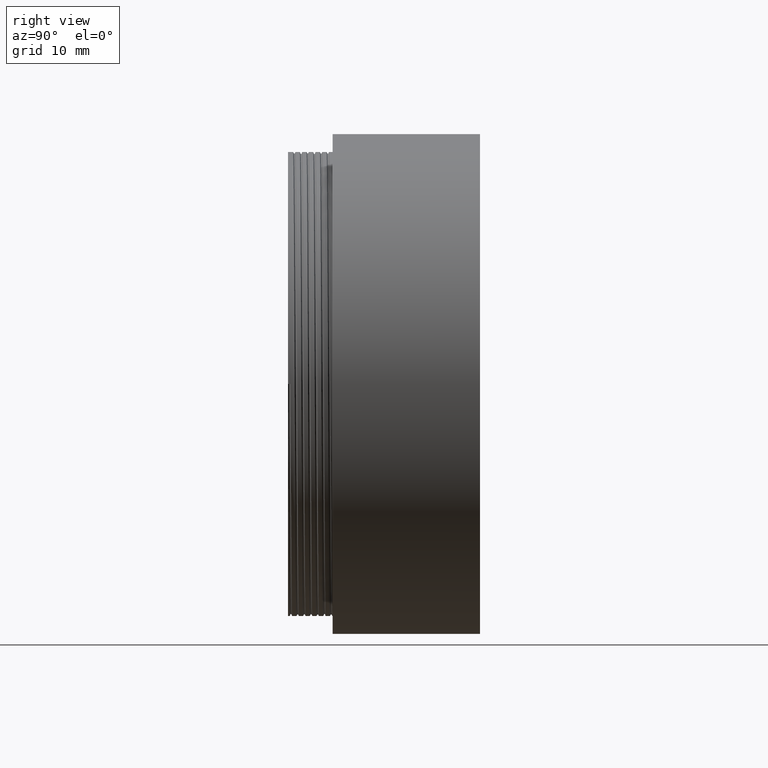
[diagram: clean part render]
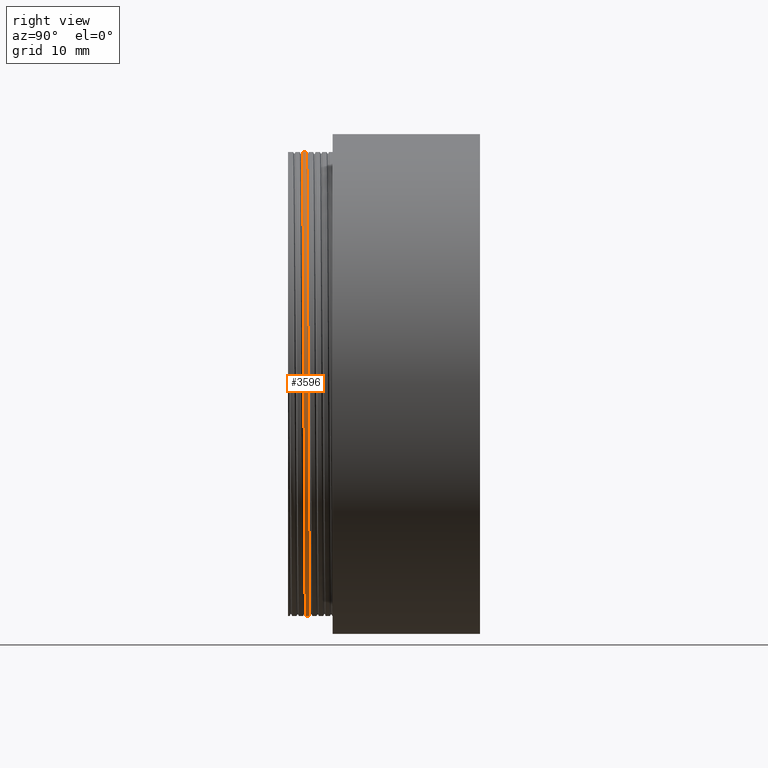
[diagram: same view with one face highlighted and labeled with its STEP entity id]
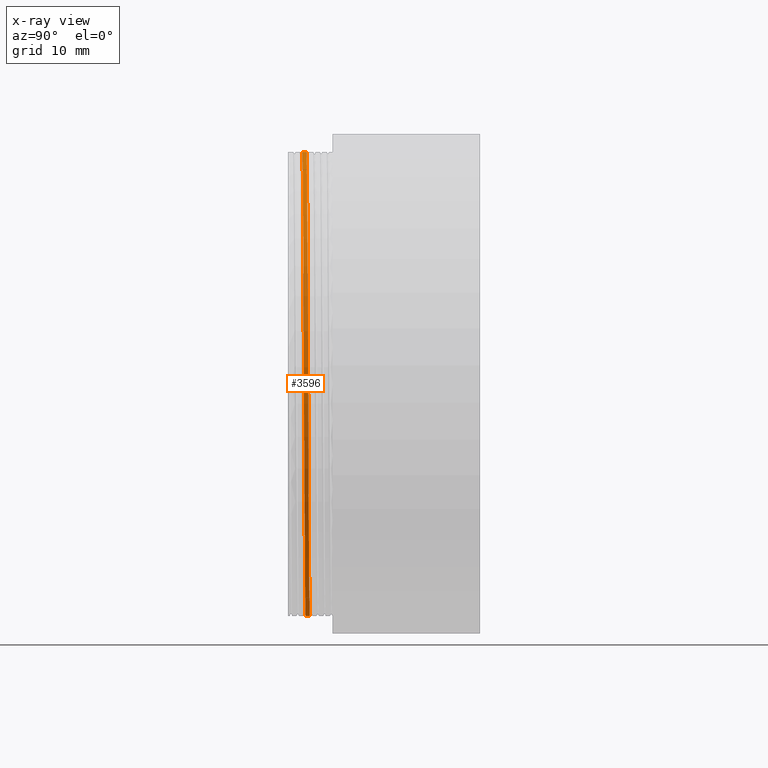
[diagram: x-ray of the same camera — body ghosted, the highlighted face saturated]
A machine part, right view. The second image highlights one B-rep face of the part: STEP entity #3596.
The next image is the same camera in x-ray: the body ghosted, the highlighted face saturated — about 0% of this face is hidden behind the body in this view.
In plain terms, the highlighted cylindrical surface (partial cylindrical patch) has radius 26 mm, axis along (-0, -1, -0).
Its self-contained STEP definition (entity closure, byte-faithful):
#58 = CARTESIAN_POINT ( 'NONE',  ( 1.592040838891559095E-15, 2.437500000000000000, -26.00000000000000000 ) ) ;
#234 = DIRECTION ( 'NONE',  ( -0.000000000000000000, -1.000000000000000000, -0.000000000000000000 ) ) ;
#318 = EDGE_CURVE ( 'NONE', #2815, #5185, #4446, .T. ) ;
#354 = CARTESIAN_POINT ( 'NONE',  ( 10.76955262170050176, 1.918437499132848334, -25.99999999999997158 ) ) ;
#690 = AXIS2_PLACEMENT_3D ( 'NONE', #1943, #5326, #1526 ) ;
#704 = ORIENTED_EDGE ( 'NONE', *, *, #318, .F. ) ;
#761 = CARTESIAN_POINT ( 'NONE',  ( 1.592040838891559095E-15, 1.965312499132848112, -26.00000000000000000 ) ) ;
#907 = CARTESIAN_POINT ( 'NONE',  ( 25.99999999999999289, 2.203125000000000000, 10.76955262170048933 ) ) ;
#1009 = VECTOR ( 'NONE', #234, 1000.000000000000000 ) ;
#1050 = CARTESIAN_POINT ( 'NONE',  ( 18.38477631085022779, 2.156250000000000000, 18.38477631085023845 ) ) ;
#1080 = CARTESIAN_POINT ( 'NONE',  ( -4.776122516674677089E-15, 2.062500000000000000, 26.00000000000000000 ) ) ;
#1109 = CARTESIAN_POINT ( 'NONE',  ( 26.00000000000000000, 2.250000000000000444, 0.000000000000000000 ) ) ;
#1189 = DIRECTION ( 'NONE',  ( -0.000000000000000000, -1.000000000000000000, -0.000000000000000000 ) ) ;
#1215 = CARTESIAN_POINT ( 'NONE',  ( 3.184081677783118191E-15, 0.000000000000000000, 26.00000000000000000 ) ) ;
#1241 = LINE ( 'NONE', #1215, #1495 ) ;
#1495 = VECTOR ( 'NONE', #1189, 1000.000000000000000 ) ;
#1526 = DIRECTION ( 'NONE',  ( 0.000000000000000000, 0.000000000000000000, -1.000000000000000000 ) ) ;
#1744 = EDGE_LOOP ( 'NONE', ( #1803, #2476, #5470, #704 ) ) ;
#1803 = ORIENTED_EDGE ( 'NONE', *, *, #3459, .F. ) ;
#1943 = CARTESIAN_POINT ( 'NONE',  ( 0.000000000000000000, 0.000000000000000000, 0.000000000000000000 ) ) ;
#2022 = CARTESIAN_POINT ( 'NONE',  ( 18.38477631085023489, 1.871562499132848334, -18.38477631085023489 ) ) ;
#2111 = VERTEX_POINT ( 'NONE', #3201 ) ;
#2305 =( BOUNDED_CURVE ( )  B_SPLINE_CURVE ( 2, ( #1080, #5158, #1050, #907, #1109, #3635, #4017, #2770, #4436 ),
 .UNSPECIFIED., .F., .T. ) 
 B_SPLINE_CURVE_WITH_KNOTS ( ( 3, 2, 2, 2, 3 ),
 ( 0.3928571428571428492, 0.4107142857142856984, 0.4285714285714284921, 0.4464285714285713969, 0.4642857142857142461 ),
 .UNSPECIFIED. ) 
 CURVE ( )  GEOMETRIC_REPRESENTATION_ITEM ( )  RATIONAL_B_SPLINE_CURVE ( ( 1.000000000000000000, 0.9238795325112867385, 1.000000000000000000, 0.9238795325112867385, 1.000000000000000000, 0.9238795325112867385, 1.000000000000000000, 0.9238795325112869605, 0.9999999999999997780 ) ) 
 REPRESENTATION_ITEM ( '' )  );
#2335 = CARTESIAN_POINT ( 'NONE',  ( 1.592040838891559095E-15, 1.965312499132848112, -26.00000000000000000 ) ) ;
#2476 = ORIENTED_EDGE ( 'NONE', *, *, #3766, .T. ) ;
#2677 = EDGE_CURVE ( 'NONE', #2111, #5185, #2892, .T. ) ;
#2770 = CARTESIAN_POINT ( 'NONE',  ( 10.76955262170050176, 2.390625000000000000, -25.99999999999997158 ) ) ;
#2815 = VERTEX_POINT ( 'NONE', #58 ) ;
#2892 =( BOUNDED_CURVE ( )  B_SPLINE_CURVE ( 2, ( #2900, #4570, #5433, #4967, #3023, #5457, #2022, #354, #761 ),
 .UNSPECIFIED., .F., .F. ) 
 B_SPLINE_CURVE_WITH_KNOTS ( ( 3, 2, 2, 2, 3 ),
 ( 0.2500000000000000000, 0.2678571428571428492, 0.2857142857142856984, 0.3035714285714284921, 0.3214285714285713969 ),
 .UNSPECIFIED. ) 
 CURVE ( )  GEOMETRIC_REPRESENTATION_ITEM ( )  RATIONAL_B_SPLINE_CURVE ( ( 1.000000000000000000, 0.9238795325112867385, 1.000000000000000000, 0.9238795325112867385, 1.000000000000000000, 0.9238795325112867385, 1.000000000000000000, 0.9238795325112869605, 0.9999999999999997780 ) ) 
 REPRESENTATION_ITEM ( '' )  );
#2900 = CARTESIAN_POINT ( 'NONE',  ( -4.776122516674677089E-15, 1.590312499132848334, 26.00000000000000000 ) ) ;
#3023 = CARTESIAN_POINT ( 'NONE',  ( 26.00000000000000000, 1.777812499132848334, 0.000000000000000000 ) ) ;
#3191 = CYLINDRICAL_SURFACE ( 'NONE', #690, 26.00000000000000000 ) ;
#3201 = CARTESIAN_POINT ( 'NONE',  ( -4.776122516674677089E-15, 1.590312499132848334, 26.00000000000000000 ) ) ;
#3459 = EDGE_CURVE ( 'NONE', #3771, #2815, #2305, .T. ) ;
#3577 = FACE_OUTER_BOUND ( 'NONE', #1744, .T. ) ;
#3596 = ADVANCED_FACE ( 'NONE', ( #3577 ), #3191, .T. ) ;
#3635 = CARTESIAN_POINT ( 'NONE',  ( 26.00000000000000000, 2.296875000000000000, -10.76955262170047334 ) ) ;
#3766 = EDGE_CURVE ( 'NONE', #3771, #2111, #1241, .T. ) ;
#3771 = VERTEX_POINT ( 'NONE', #4519 ) ;
#4017 = CARTESIAN_POINT ( 'NONE',  ( 18.38477631085023489, 2.343750000000000000, -18.38477631085023489 ) ) ;
#4436 = CARTESIAN_POINT ( 'NONE',  ( 1.592040838891559095E-15, 2.437500000000000000, -26.00000000000000000 ) ) ;
#4446 = LINE ( 'NONE', #4778, #1009 ) ;
#4519 = CARTESIAN_POINT ( 'NONE',  ( -4.776122516674677089E-15, 2.062500000000000000, 26.00000000000000000 ) ) ;
#4570 = CARTESIAN_POINT ( 'NONE',  ( 10.76955262170047689, 1.637187499132848334, 25.99999999999999645 ) ) ;
#4778 = CARTESIAN_POINT ( 'NONE',  ( 0.000000000000000000, 0.000000000000000000, -26.00000000000000000 ) ) ;
#4967 = CARTESIAN_POINT ( 'NONE',  ( 25.99999999999999289, 1.730937499132848112, 10.76955262170048933 ) ) ;
#5158 = CARTESIAN_POINT ( 'NONE',  ( 10.76955262170047689, 2.109375000000000000, 25.99999999999999645 ) ) ;
#5185 = VERTEX_POINT ( 'NONE', #2335 ) ;
#5326 = DIRECTION ( 'NONE',  ( -0.000000000000000000, -1.000000000000000000, -0.000000000000000000 ) ) ;
#5433 = CARTESIAN_POINT ( 'NONE',  ( 18.38477631085022779, 1.684062499132848112, 18.38477631085023845 ) ) ;
#5457 = CARTESIAN_POINT ( 'NONE',  ( 26.00000000000000000, 1.824687499132848334, -10.76955262170047334 ) ) ;
#5470 = ORIENTED_EDGE ( 'NONE', *, *, #2677, .T. ) ;